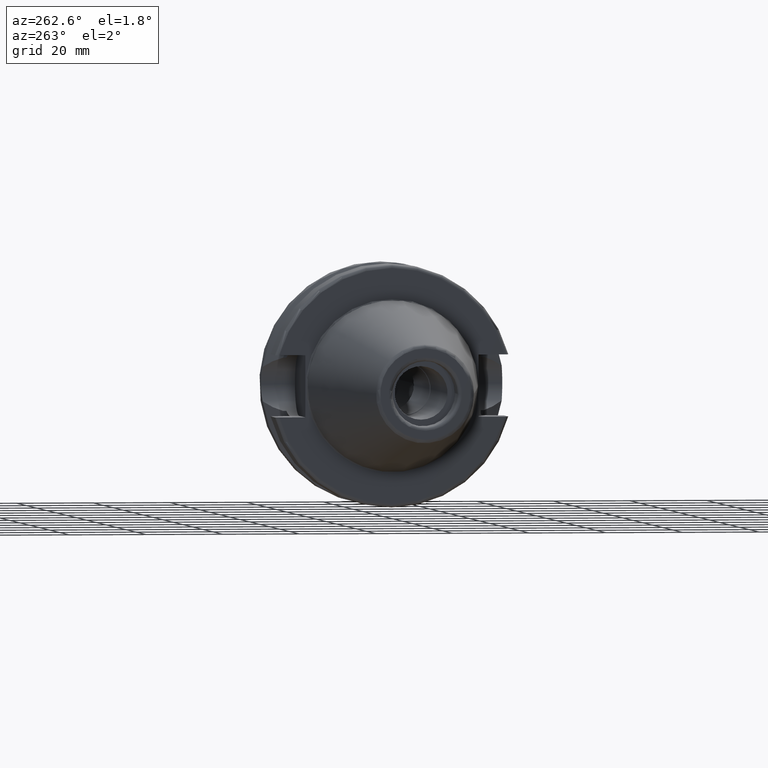
[diagram: clean part render]
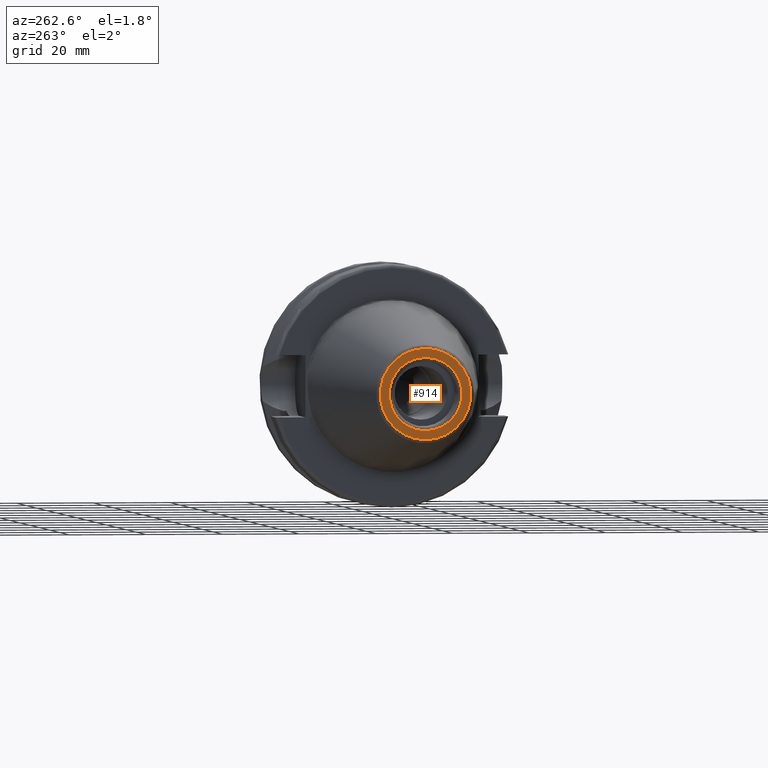
[diagram: same view with one face highlighted and labeled with its STEP entity id]
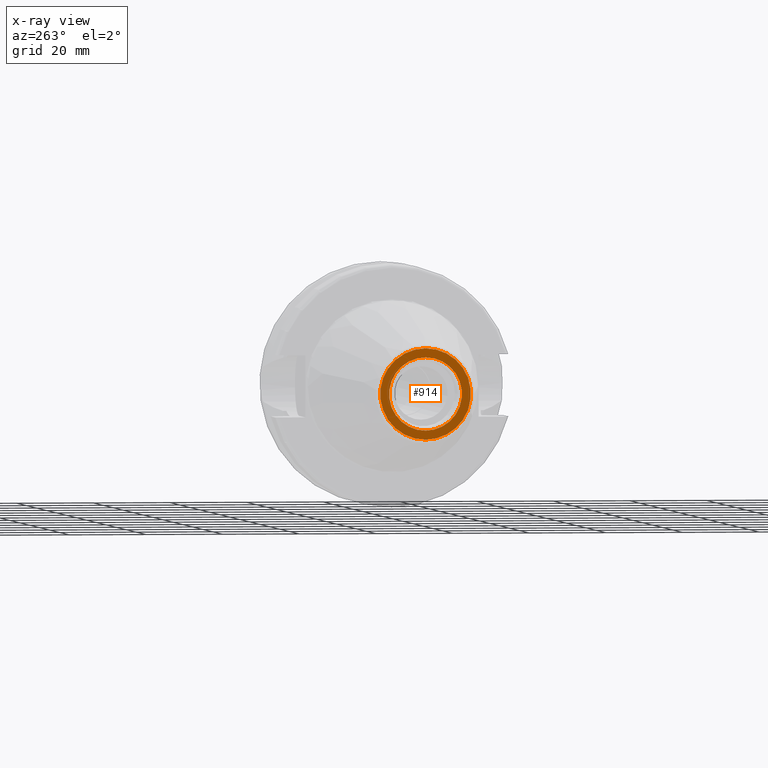
[diagram: x-ray of the same camera — body ghosted, the highlighted face saturated]
A machine part, auxiliary view. The second image highlights one B-rep face of the part: STEP entity #914.
The next image is the same camera in x-ray: the body ghosted, the highlighted face saturated — about 0% of this face is hidden behind the body in this view.
In plain terms, the highlighted planar face has unit normal (-1, 0, 0).
Its self-contained STEP definition (entity closure, byte-faithful):
#164=FACE_BOUND('',#296,.T.);
#181=PLANE('',#1055);
#234=FACE_OUTER_BOUND('',#295,.T.);
#295=EDGE_LOOP('',(#850));
#296=EDGE_LOOP('',(#851));
#341=CIRCLE('',#1017,11.8227555970304);
#360=CIRCLE('',#1053,9.5);
#438=VERTEX_POINT('',#1730);
#449=VERTEX_POINT('',#1784);
#557=EDGE_CURVE('',#438,#438,#341,.T.);
#582=EDGE_CURVE('',#449,#449,#360,.T.);
#850=ORIENTED_EDGE('',*,*,#557,.F.);
#851=ORIENTED_EDGE('',*,*,#582,.T.);
#914=ADVANCED_FACE('',(#234,#164),#181,.T.);
#1017=AXIS2_PLACEMENT_3D('',#1732,#1256,#1257);
#1053=AXIS2_PLACEMENT_3D('',#1785,#1334,#1335);
#1055=AXIS2_PLACEMENT_3D('',#1787,#1338,#1339);
#1256=DIRECTION('center_axis',(1.,0.,0.));
#1257=DIRECTION('ref_axis',(0.,0.,-1.));
#1334=DIRECTION('center_axis',(1.,0.,0.));
#1335=DIRECTION('ref_axis',(0.,0.,-1.));
#1338=DIRECTION('center_axis',(-1.,0.,0.));
#1339=DIRECTION('ref_axis',(0.,0.,1.));
#1730=CARTESIAN_POINT('',(-65.4,-1.44786997990048E-15,11.8227555970304));
#1732=CARTESIAN_POINT('Origin',(-65.4,0.,0.));
#1784=CARTESIAN_POINT('',(-65.4,-1.16341445918999E-15,9.5));
#1785=CARTESIAN_POINT('Origin',(-65.4,0.,0.));
#1787=CARTESIAN_POINT('Origin',(-65.4,11.8227555970304,0.));